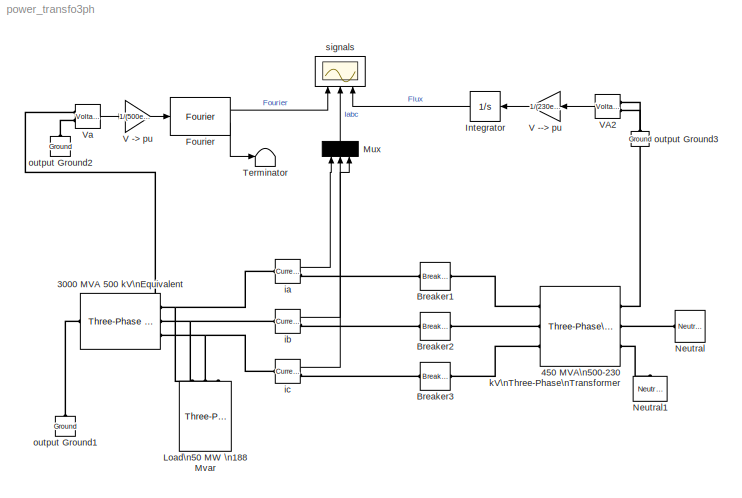
MODEL power_transfo3ph
KIND model
BLOCK [Reference] 3000 MVA  500 kV\nEquivalent  REF=powerlib/Electrical\nSources/Three-Phase Source
  BaseVoltage = 25e3
  Frequency = 60
  Inductance = 0.221
  InternalConnection = Yn
  PhaseAngle = 0
  Ports = [0, 0, 0, 0, 0, 1, 3]
  Resistance = 5.55
  ShortCircuitLevel = 100e6
  ShowPortLabels = on
  SourceBlock = powerlib/Electrical\nSources/Three-Phase Source
  SourceType = Three-Phase Source
  SpecifyImpedance = off
  Voltage = 500e3
  XRratio = 7
BLOCK [Reference] 450 MVA\n500-230 kV\nThree-Phase\nTransformer  REF=powerlib/Elements/Three-Phase\nTransformer\n(Two Windings)
  AttributesFormatString = \\n
  DataFile = 'hysteresis'
  Hysteresis = off
  InitialFluxes = [0.8  -0.4  0.4]
  Lm = 500
  Measurements = None
  NominalPower = [ 450e6 60 ]
  Ports = [0, 0, 0, 0, 0, 3, 3]
  Rm = 500
  Saturation = [0 0; 0.0 1.2; 1.0  1.52]
  SetInitialFlux = on
  SetSaturation = on
  ShowPortLabels = on
  SourceBlock = powerlib/Elements/Three-Phase\nTransformer\n(Two Windings)
  SourceType = Three-Phase Transformer (Two Windings)
  TransfoNumber = 0
  Winding1 = [ 500e3 0.002 0.08 ]
  Winding1Connection = Yg
  Winding2 = [ 230e3 0.002 0.08]
  Winding2Connection = Yg
BLOCK [Reference] Breaker1  REF=powerlib/Elements/Breaker
  AttributesFormatString = \\n
  BreakerResistance = 1e-2
  External = off
  InitialState = 0
  Measurements = None
  Ports = [0, 0, 0, 0, 0, 1, 1]
  ShowPortLabels = on
  SnubberCapacitance = inf
  SnubberResistance = 100e6
  SourceBlock = powerlib/Elements/Breaker
  SourceType = Breaker
  SwitchingTimes = .05
BLOCK [Reference] Breaker2  REF=powerlib/Elements/Breaker
  AttributesFormatString = \\n
  BreakerResistance = 1e-2
  External = off
  InitialState = 0
  Measurements = None
  Ports = [0, 0, 0, 0, 0, 1, 1]
  ShowPortLabels = on
  SnubberCapacitance = inf
  SnubberResistance = 100e6
  SourceBlock = powerlib/Elements/Breaker
  SourceType = Breaker
  SwitchingTimes = .05
BLOCK [Reference] Breaker3  REF=powerlib/Elements/Breaker
  AttributesFormatString = \\n
  BreakerResistance = 1e-2
  External = off
  InitialState = 0
  Measurements = None
  Ports = [0, 0, 0, 0, 0, 1, 1]
  ShowPortLabels = on
  SnubberCapacitance = inf
  SnubberResistance = 100e6
  SourceBlock = powerlib/Elements/Breaker
  SourceType = Breaker
  SwitchingTimes = .05
BLOCK [Reference] Fourier  REF=powerlib_extras/Measurements/Fourier
  Ports = [1, 2]
  ShowPortLabels = on
  SourceBlock = powerlib_extras/Measurements/Fourier
  SourceType = Fourier analyser
  f1 = 60
  n = 4
BLOCK [Integrator] Integrator
  InitialCondition = 0.8
  Ports = [1, 1]
BLOCK [Reference] Load\n50 MW \n188 Mvar  REF=powerlib/Elements/Three-Phase\nParallel RLC Load
  ActivePower = 50e6
  AttributesFormatString = \\n
  CapacitivePower = 188e6
  Configuration = Y (grounded)
  InductivePower = 0
  LConnTagsString = A|B|C
  LeftPortType = p1
  Measurements = None
  NominalFrequency = 60
  NominalVoltage = 500e3
  PhysicalDomain = powersysdomain
  Ports = [0, 0, 0, 0, 0, 3]
  RightPortType = p1
  SourceBlock = powerlib/Elements/Three-Phase\nParallel RLC Load
  SourceType = Three-Phase Parallel RLC Load
  SubClassName = unknown
BLOCK [Mux] Mux
  Inputs = 3
  Ports = [3, 1]
BLOCK [Reference] Neutral  REF=powerlib/Elements/Neutral
  AttributesFormatString = node %<NodeNumber>
  LConnTagsString = a
  LeftPortType = p1
  NodeNumber = 991
  PhysicalDomain = powersysdomain
  Ports = [0, 0, 0, 0, 0, 1]
  RightPortType = p1
  SourceBlock = powerlib/Elements/Neutral
  SourceType = Neutral
  SubClassName = unknown
BLOCK [Reference] Neutral1  REF=powerlib/Elements/Neutral
  AttributesFormatString = node %<NodeNumber>
  LConnTagsString = a
  LeftPortType = p1
  NodeNumber = 992
  PhysicalDomain = powersysdomain
  Ports = [0, 0, 0, 0, 0, 1]
  RightPortType = p1
  SourceBlock = powerlib/Elements/Neutral
  SourceType = Neutral
  SubClassName = unknown
BLOCK [Terminator] Terminator
BLOCK [Gain] V --> pu
  Gain = 1/(230e3/sqrt(3)*sqrt(2)/2/pi/60)
BLOCK [Gain] V -> pu
  Gain = 1/(500e3/sqrt(3)*sqrt(2))
BLOCK [Reference] VA2  REF=powerlib/Measurements/Voltage Measurement
  AttributesFormatString = \\n
  OutputType = Magnitude
  PSBequivalent = 0
  PhasorSimulation = off
  Ports = [0, 1, 0, 0, 0, 2]
  ShowPortLabels = on
  SourceBlock = powerlib/Measurements/Voltage Measurement
  SourceType = Voltage Measurement
  Tag = PoWeRsYsTeMmEaSuReMeNt
BLOCK [Reference] Va  REF=powerlib/Measurements/Voltage Measurement
  AttributesFormatString = \\n
  OutputType = Magnitude
  PSBequivalent = 0
  PhasorSimulation = off
  Ports = [0, 1, 0, 0, 0, 2]
  ShowPortLabels = on
  SourceBlock = powerlib/Measurements/Voltage Measurement
  SourceType = Voltage Measurement
  Tag = PoWeRsYsTeMmEaSuReMeNt
BLOCK [Reference] ia  REF=powerlib/Measurements/Current Measurement
  AttributesFormatString = \\n
  OutputType = Magnitude
  PSBequivalent = 0
  PhasorSimulation = off
  Ports = [0, 1, 0, 0, 0, 1, 1]
  ShowPortLabels = on
  SourceBlock = powerlib/Measurements/Current Measurement
  SourceType = Current Measurement
  Tag = PoWeRsYsTeMmEaSuReMeNt
BLOCK [Reference] ib  REF=powerlib/Measurements/Current Measurement
  AttributesFormatString = \\n
  OutputType = Magnitude
  PSBequivalent = 0
  PhasorSimulation = off
  Ports = [0, 1, 0, 0, 0, 1, 1]
  ShowPortLabels = on
  SourceBlock = powerlib/Measurements/Current Measurement
  SourceType = Current Measurement
  Tag = PoWeRsYsTeMmEaSuReMeNt
BLOCK [Reference] ic  REF=powerlib/Measurements/Current Measurement
  AttributesFormatString = \\n
  OutputType = Magnitude
  PSBequivalent = 0
  PhasorSimulation = off
  Ports = [0, 1, 0, 0, 0, 1, 1]
  ShowPortLabels = on
  SourceBlock = powerlib/Measurements/Current Measurement
  SourceType = Current Measurement
  Tag = PoWeRsYsTeMmEaSuReMeNt
BLOCK [Reference] output Ground1  REF=powerlib/Elements/Ground
  AttributesFormatString = \\n
  LConnTagsString = a
  LeftPortType = p1
  PhysicalDomain = powersysdomain
  Ports = [0, 0, 0, 0, 0, 1]
  RightPortType = p1
  SourceBlock = powerlib/Elements/Ground
  SourceType = Ground
  SubClassName = unknown
BLOCK [Reference] output Ground2  REF=powerlib/Elements/Ground
  AttributesFormatString = \\n
  LConnTagsString = a
  LeftPortType = p1
  PhysicalDomain = powersysdomain
  Ports = [0, 0, 0, 0, 0, 1]
  RightPortType = p1
  SourceBlock = powerlib/Elements/Ground
  SourceType = Ground
  SubClassName = unknown
BLOCK [Reference] output Ground3  REF=powerlib/Elements/Ground
  AttributesFormatString = \\n
  LConnTagsString = a
  LeftPortType = p1
  PhysicalDomain = powersysdomain
  Ports = [0, 0, 0, 0, 0, 1]
  RightPortType = p1
  SourceBlock = powerlib/Elements/Ground
  SourceType = Ground
  SubClassName = unknown
BLOCK [Scope] signals
  DataFormat = Structure
  LimitDataPoints = off
  NumInputPorts = 3
  Ports = [3]
  TimeRange = 0.2
  YMax = 3000~5~5
  YMin = -2000~-5~-5
LINE Fourier:1 -> signals:1
LINE Fourier:2 -> Terminator:1
LINE Integrator:1 -> signals:3
LINE Mux:1 -> signals:2
LINE V --> pu:1 -> Integrator:1
LINE V -> pu:1 -> Fourier:1
LINE VA2:1 -> V --> pu:1
LINE Va:1 -> V -> pu:1
LINE ia:1 -> Mux:1
LINE ib:1 -> Mux:2
LINE ic:1 -> Mux:3
PLINE 3000 MVA  500 kV\nEquivalent:LConn1 -- output Ground1:LConn1
PNET net1: 3000 MVA  500 kV\nEquivalent:RConn1 -- Load\n50 MW \n188 Mvar:LConn1 -- Va:LConn1 -- ia:LConn1
PNET net2: 3000 MVA  500 kV\nEquivalent:RConn2 -- Load\n50 MW \n188 Mvar:LConn2 -- ib:LConn1
PNET net3: 3000 MVA  500 kV\nEquivalent:RConn3 -- Load\n50 MW \n188 Mvar:LConn3 -- ic:LConn1
PLINE 450 MVA\n500-230 kV\nThree-Phase\nTransformer:LConn1 -- Breaker1:RConn1
PLINE 450 MVA\n500-230 kV\nThree-Phase\nTransformer:LConn2 -- Breaker2:RConn1
PLINE 450 MVA\n500-230 kV\nThree-Phase\nTransformer:LConn3 -- Breaker3:RConn1
PLINE 450 MVA\n500-230 kV\nThree-Phase\nTransformer:RConn1 -- VA2:LConn1
PLINE 450 MVA\n500-230 kV\nThree-Phase\nTransformer:RConn2 -- Neutral:LConn1
PLINE 450 MVA\n500-230 kV\nThree-Phase\nTransformer:RConn3 -- Neutral1:LConn1
PLINE Breaker1:LConn1 -- ia:RConn1
PLINE Breaker2:LConn1 -- ib:RConn1
PLINE Breaker3:LConn1 -- ic:RConn1
PLINE VA2:LConn2 -- output Ground3:LConn1
PLINE Va:LConn2 -- output Ground2:LConn1
note: PNET lines group multi-terminal physical nets as a canonical sorted terminal list (undirected conserving connections); 2-terminal nets keep the pairwise PLINE form
